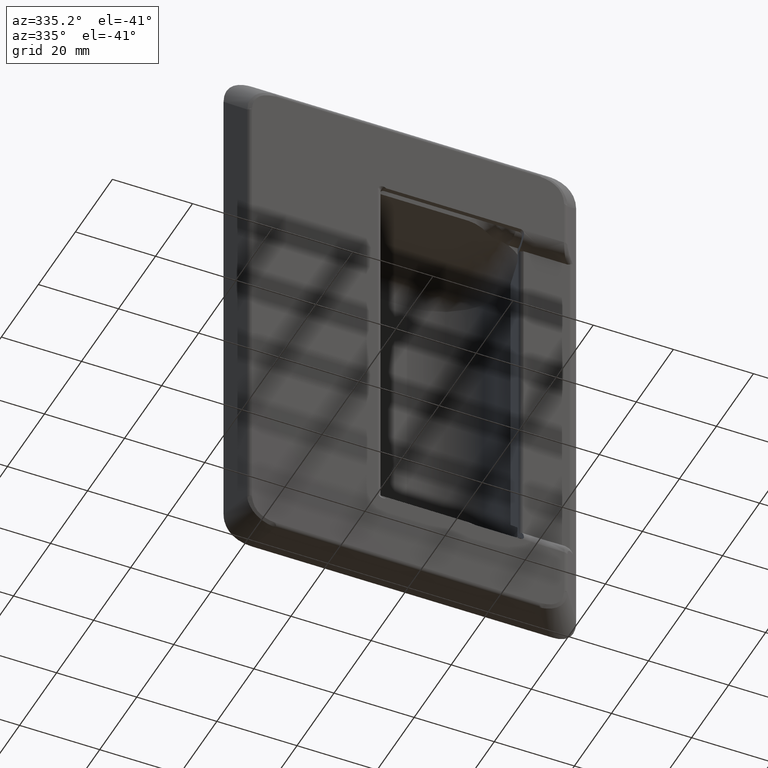
[diagram: clean part render]
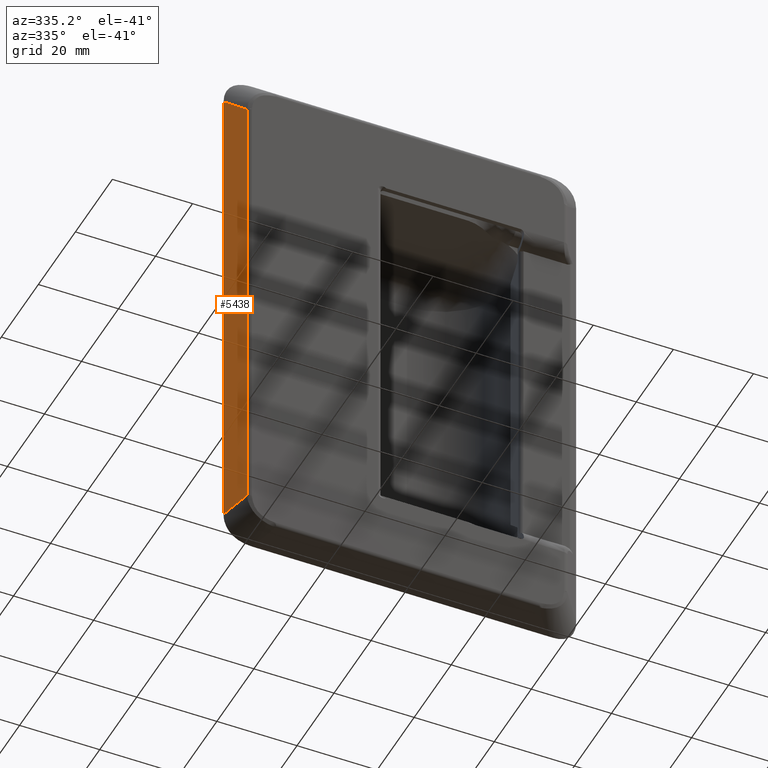
[diagram: same view with one face highlighted and labeled with its STEP entity id]
A machine part, auxiliary view. The second image highlights one B-rep face of the part: STEP entity #5438.
In plain terms, the highlighted face is a freeform B-spline surface patch.
Its self-contained STEP definition (entity closure, byte-faithful):
#2856=CARTESIAN_POINT('',(-39.999339828045400,0.439339828220177,-57.928272016542898));
#2857=VERTEX_POINT('',#2856);
#3032=CARTESIAN_POINT('',(-39.999339828045400,0.439339828220184,57.928272016163397));
#3033=VERTEX_POINT('',#3032);
#3043=CARTESIAN_POINT('',(-39.999339828045400,0.439339828220177,-57.928272016542898));
#3044=CARTESIAN_POINT('',(-39.999339828045400,0.439339828220184,57.928272016163397));
#3045=QUASI_UNIFORM_CURVE('',1,(#3043,#3044),.UNSPECIFIED.,.F.,.U.);
#3046=EDGE_CURVE('',#2857,#3033,#3045,.T.);
#3329=CARTESIAN_POINT('',(-43.999999999825199,4.440000000000000,61.928932187944298));
#3330=VERTEX_POINT('',#3329);
#3432=CARTESIAN_POINT('',(-39.999339828045400,0.439339828220184,57.928272016163397));
#3433=CARTESIAN_POINT('',(-43.999999999825199,4.440000000000000,61.928932187944298));
#3434=QUASI_UNIFORM_CURVE('',1,(#3432,#3433),.UNSPECIFIED.,.F.,.U.);
#3435=EDGE_CURVE('',#3033,#3330,#3434,.T.);
#3526=CARTESIAN_POINT('',(-43.999999999825199,4.440000000000000,-61.928932188322797));
#3527=VERTEX_POINT('',#3526);
#3617=CARTESIAN_POINT('',(-43.999999999825199,4.440000000000000,-61.928932188322797));
#3618=CARTESIAN_POINT('',(-39.999339828045400,0.439339828220177,-57.928272016542898));
#3619=QUASI_UNIFORM_CURVE('',1,(#3617,#3618),.UNSPECIFIED.,.F.,.U.);
#3620=EDGE_CURVE('',#3527,#2857,#3619,.T.);
#4202=CARTESIAN_POINT('',(-43.999999999825199,4.440000000000000,-61.928932188322797));
#4203=CARTESIAN_POINT('',(-43.999999999825199,4.440000000000000,61.928932187944298));
#4204=QUASI_UNIFORM_CURVE('',1,(#4202,#4203),.UNSPECIFIED.,.F.,.U.);
#4205=EDGE_CURVE('',#3527,#3330,#4204,.T.);
#5427=CARTESIAN_POINT('',(-39.799506972885041,0.239506973059845,-68.115632273856761));
#5428=CARTESIAN_POINT('',(-44.199833069597673,4.639833069772480,-68.115632273856761));
#5429=CARTESIAN_POINT('',(-39.799506972885041,0.239506973059845,68.115635595605085));
#5430=CARTESIAN_POINT('',(-44.199833069597673,4.639833069772480,68.115635595605085));
#5431=B_SPLINE_SURFACE_WITH_KNOTS('',1,1,((#5427,#5429),(#5428,#5430)),.UNSPECIFIED.,.F.,.F.,.U.,(2,2),(2,2),(0.0,6.223000844835270),(0.0,136.231267869461900),.UNSPECIFIED.);
#5432=ORIENTED_EDGE('',*,*,#3620,.T.);
#5433=ORIENTED_EDGE('',*,*,#3046,.T.);
#5434=ORIENTED_EDGE('',*,*,#3435,.T.);
#5435=ORIENTED_EDGE('',*,*,#4205,.F.);
#5436=EDGE_LOOP('',(#5432,#5433,#5434,#5435));
#5437=FACE_OUTER_BOUND('',#5436,.T.);
#5438=ADVANCED_FACE('',(#5437),#5431,.F.);